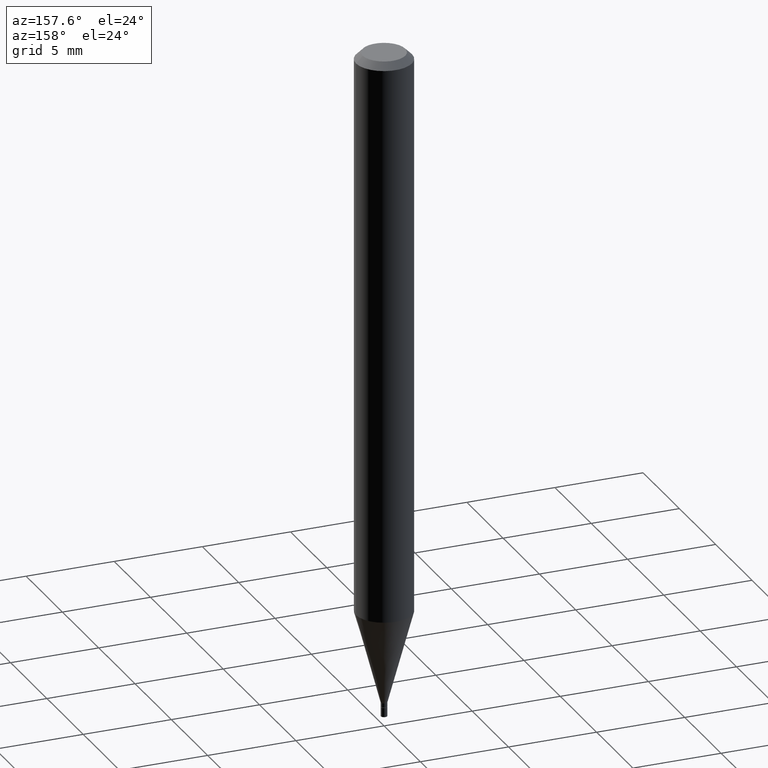
[diagram: clean part render]
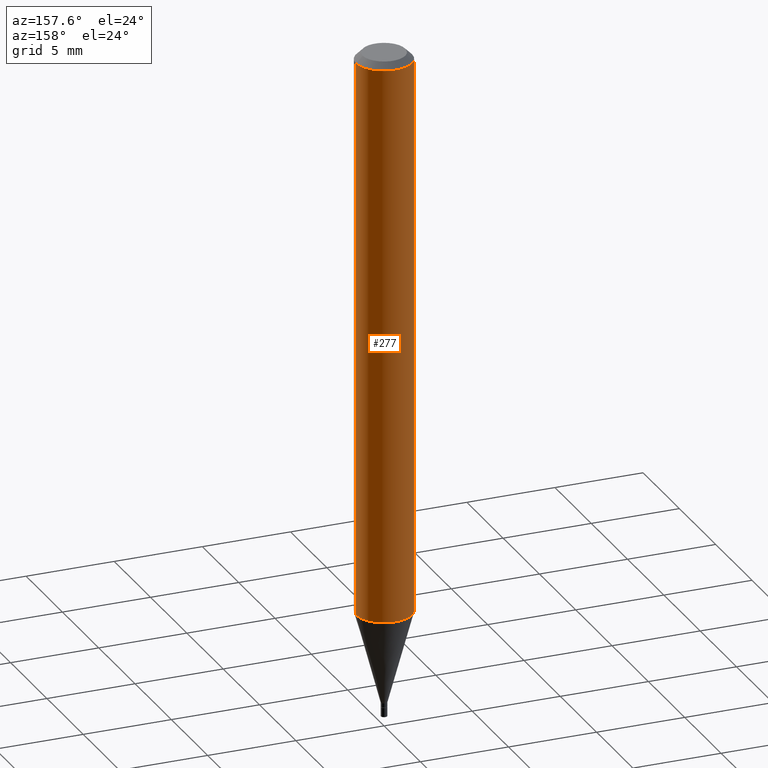
[diagram: same view with one face highlighted and labeled with its STEP entity id]
A machine part, auxiliary view. The second image highlights one B-rep face of the part: STEP entity #277.
In plain terms, the highlighted cylindrical surface (edge-blend (fillet) strip) has radius 1.5875 mm, axis along (-0, 0, 1).
Its self-contained STEP definition (entity closure, byte-faithful):
#8 = ORIENTED_EDGE ( 'NONE', *, *, #369, .F. ) ;
#16 = CARTESIAN_POINT ( 'NONE',  ( 0.06249999999999999306, -4.842234844977585811E-15, -1.261871180179927610 ) ) ;
#19 = VERTEX_POINT ( 'NONE', #79 ) ;
#40 = DIRECTION ( 'NONE',  ( -2.445468806185136877E-29, 3.491481338843145188E-15, 1.000000000000000000 ) ) ;
#79 = CARTESIAN_POINT ( 'NONE',  ( -0.06249999999999999306, -3.961710467772130736E-15, -1.261871180179927610 ) ) ;
#83 = DIRECTION ( 'NONE',  ( -2.445468806185136877E-29, 3.491481338843145188E-15, 1.000000000000000000 ) ) ;
#119 = DIRECTION ( 'NONE',  ( 1.000000000000000000, -6.982962677686266711E-15, 0.000000000000000000 ) ) ;
#135 = EDGE_CURVE ( 'NONE', #19, #210, #150, .T. ) ;
#142 = CARTESIAN_POINT ( 'NONE',  ( 0.000000000000000000, 0.000000000000000000, 0.000000000000000000 ) ) ;
#150 = LINE ( 'NONE', #232, #206 ) ;
#159 = ORIENTED_EDGE ( 'NONE', *, *, #135, .T. ) ;
#168 = VECTOR ( 'NONE', #83, 39.37007874015748143 ) ;
#174 = CARTESIAN_POINT ( 'NONE',  ( -0.06250000000000000000, -1.784996739002358191E-15, -0.01499999999999999944 ) ) ;
#179 = CIRCLE ( 'NONE', #446, 0.06250000000000000000 ) ;
#180 = DIRECTION ( 'NONE',  ( 1.000000000000000000, -6.982962677686262766E-15, 0.000000000000000000 ) ) ;
#199 = VERTEX_POINT ( 'NONE', #16 ) ;
#204 = ORIENTED_EDGE ( 'NONE', *, *, #218, .T. ) ;
#206 = VECTOR ( 'NONE', #40, 39.37007874015748143 ) ;
#210 = VERTEX_POINT ( 'NONE', #174 ) ;
#218 = EDGE_CURVE ( 'NONE', #199, #19, #179, .T. ) ;
#226 = DIRECTION ( 'NONE',  ( 1.000000000000000000, -6.982962677686266711E-15, 4.876176775795935793E-29 ) ) ;
#232 = CARTESIAN_POINT ( 'NONE',  ( -0.06250000000000000000, 4.440892098500626162E-16, -3.074334431409316114E-30 ) ) ;
#259 = CYLINDRICAL_SURFACE ( 'NONE', #381, 0.06250000000000000000 ) ;
#273 = AXIS2_PLACEMENT_3D ( 'NONE', #449, #413, #119 ) ;
#277 = ADVANCED_FACE ( 'NONE', ( #375 ), #259, .T. ) ;
#299 = CARTESIAN_POINT ( 'NONE',  ( 0.06250000000000000000, -4.364351673553916694E-16, 3.047610484872459871E-30 ) ) ;
#305 = EDGE_LOOP ( 'NONE', ( #204, #159, #350, #8 ) ) ;
#333 = LINE ( 'NONE', #299, #168 ) ;
#350 = ORIENTED_EDGE ( 'NONE', *, *, #437, .F. ) ;
#369 = EDGE_CURVE ( 'NONE', #199, #426, #333, .T. ) ;
#375 = FACE_OUTER_BOUND ( 'NONE', #305, .T. ) ;
#376 = CARTESIAN_POINT ( 'NONE',  ( 0.06250000000000000000, -4.888073874380388472E-16, -0.01499999999999999944 ) ) ;
#381 = AXIS2_PLACEMENT_3D ( 'NONE', #142, #403, #226 ) ;
#386 = CARTESIAN_POINT ( 'NONE',  ( 3.085866608554036727E-29, -4.405799677622194141E-15, -1.261871180179927610 ) ) ;
#390 = CIRCLE ( 'NONE', #273, 0.06250000000000000000 ) ;
#403 = DIRECTION ( 'NONE',  ( -2.445468806185136597E-29, 3.491481338843145583E-15, 1.000000000000000000 ) ) ;
#413 = DIRECTION ( 'NONE',  ( -2.445468806185136597E-29, 3.491481338843145583E-15, 1.000000000000000000 ) ) ;
#426 = VERTEX_POINT ( 'NONE', #376 ) ;
#437 = EDGE_CURVE ( 'NONE', #426, #210, #390, .T. ) ;
#446 = AXIS2_PLACEMENT_3D ( 'NONE', #386, #459, #180 ) ;
#449 = CARTESIAN_POINT ( 'NONE',  ( 3.668203209277705088E-31, -5.237222008264718399E-17, -0.01499999999999999944 ) ) ;
#459 = DIRECTION ( 'NONE',  ( -2.445468806185136597E-29, 3.491481338843145583E-15, 1.000000000000000000 ) ) ;